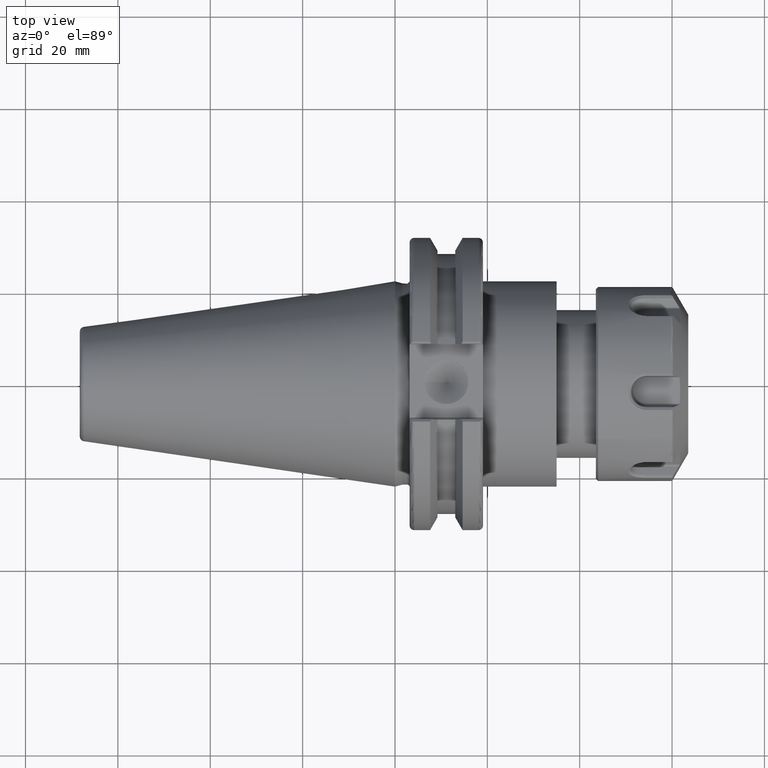
[diagram: clean part render]
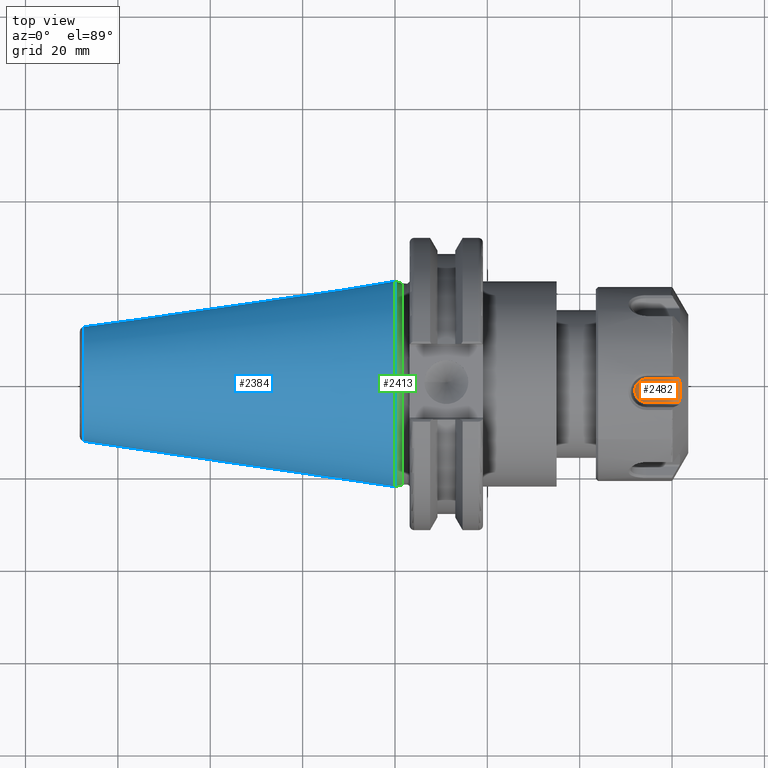
[diagram: same view with three faces highlighted in distinct colors, each labeled with its STEP entity id]
A machine part, top view with three faces highlighted in distinct colors.
Their STEP definitions:

[orange] entity #2482 — the highlighted planar face has unit normal (0, 0.0979, -0.9952).
#174=B_SPLINE_CURVE_WITH_KNOTS('',3,(#4215,#4216,#4217,#4218,#4219,#4220,
#4221),.UNSPECIFIED.,.F.,.F.,(4,1,1,1,4),(0.,0.25,0.5,0.75,1.),
 .UNSPECIFIED.);
#292=PLANE('',#2790);
#457=FACE_OUTER_BOUND('',#612,.T.);
#612=EDGE_LOOP('',(#2275,#2276,#2277,#2278));
#776=LINE('',#5251,#939);
#777=LINE('',#5256,#940);
#939=VECTOR('',#3400,7.161702976639);
#940=VECTOR('',#3407,7.161702976639);
#1049=CIRCLE('',#2791,2.580450184411);
#1214=VERTEX_POINT('',#4203);
#1215=VERTEX_POINT('',#4214);
#1272=VERTEX_POINT('',#5250);
#1273=VERTEX_POINT('',#5254);
#1497=EDGE_CURVE('',#1215,#1214,#174,.T.);
#1610=EDGE_CURVE('',#1272,#1214,#776,.T.);
#1612=EDGE_CURVE('',#1273,#1272,#1049,.T.);
#1613=EDGE_CURVE('',#1215,#1273,#777,.T.);
#2275=ORIENTED_EDGE('',*,*,#1610,.F.);
#2276=ORIENTED_EDGE('',*,*,#1612,.F.);
#2277=ORIENTED_EDGE('',*,*,#1613,.F.);
#2278=ORIENTED_EDGE('',*,*,#1497,.T.);
#2482=ADVANCED_FACE('',(#457),#292,.F.);
#2790=AXIS2_PLACEMENT_3D('',#5253,#3403,#3404);
#2791=AXIS2_PLACEMENT_3D('',#5255,#3405,#3406);
#3400=DIRECTION('',(1.,0.,0.));
#3403=DIRECTION('center_axis',(0.,-0.500000000000017,-0.866025403784429));
#3404=DIRECTION('ref_axis',(0.,0.866025403784429,-0.500000000000017));
#3405=DIRECTION('center_axis',(0.,-0.500000000000017,-0.866025403784429));
#3406=DIRECTION('ref_axis',(0.,-0.866025403784429,0.500000000000017));
#3407=DIRECTION('',(-1.,0.,0.));
#4203=CARTESIAN_POINT('',(8.161702976639,11.2347354129,14.29823217591));
#4214=CARTESIAN_POINT('',(8.161702976639,6.7652645871,16.87868236033));
#4215=CARTESIAN_POINT('Ctrl Pts',(8.161702976639,6.7652645871,16.87868236033));
#4216=CARTESIAN_POINT('Ctrl Pts',(8.196946708672,7.137800085464,16.66359889006));
#4217=CARTESIAN_POINT('Ctrl Pts',(8.250134664999,7.882784225241,16.23348209642));
#4218=CARTESIAN_POINT('Ctrl Pts',(8.276856688426,9.000013581149,15.58844942704));
#4219=CARTESIAN_POINT('Ctrl Pts',(8.250133735868,10.1172298898,14.9434242905));
#4220=CARTESIAN_POINT('Ctrl Pts',(8.196946175203,10.86220555345,14.51331239055));
#4221=CARTESIAN_POINT('Ctrl Pts',(8.161702976639,11.2347354129,14.29823217591));
#5250=CARTESIAN_POINT('',(1.,11.2347354129,14.29823217591));
#5251=CARTESIAN_POINT('',(1.,11.2347354129,14.29823217591));
#5253=CARTESIAN_POINT('Origin',(0.,9.,15.58845726812));
#5254=CARTESIAN_POINT('',(1.,6.7652645871,16.87868236033));
#5255=CARTESIAN_POINT('Origin',(1.,9.,15.58845726812));
#5256=CARTESIAN_POINT('',(8.161702976639,6.7652645871,16.87868236033));

[blue] entity #2384 — the highlighted conical surface has half-angle 8.297 deg.
#359=FACE_OUTER_BOUND('',#506,.T.);
#506=EDGE_LOOP('',(#1792,#1793,#1794,#1795,#1796));
#677=LINE('',#3800,#840);
#840=VECTOR('',#2989,17.2484375);
#979=CIRCLE('',#2625,12.3966635780937);
#980=CIRCLE('',#2626,12.3966635780937);
#984=CIRCLE('',#2632,22.225);
#1134=VERTEX_POINT('',#3787);
#1135=VERTEX_POINT('',#3788);
#1138=VERTEX_POINT('',#3798);
#1383=EDGE_CURVE('',#1134,#1135,#979,.T.);
#1384=EDGE_CURVE('',#1135,#1134,#980,.T.);
#1388=EDGE_CURVE('',#1138,#1138,#984,.T.);
#1389=EDGE_CURVE('',#1138,#1135,#677,.T.);
#1792=ORIENTED_EDGE('',*,*,#1388,.F.);
#1793=ORIENTED_EDGE('',*,*,#1389,.T.);
#1794=ORIENTED_EDGE('',*,*,#1383,.F.);
#1795=ORIENTED_EDGE('',*,*,#1384,.F.);
#1796=ORIENTED_EDGE('',*,*,#1389,.F.);
#2339=CONICAL_SURFACE('',#2631,17.2484375,0.144812498238939);
#2384=ADVANCED_FACE('',(#359),#2339,.T.);
#2625=AXIS2_PLACEMENT_3D('',#3789,#2973,#2974);
#2626=AXIS2_PLACEMENT_3D('',#3790,#2975,#2976);
#2631=AXIS2_PLACEMENT_3D('',#3797,#2985,#2986);
#2632=AXIS2_PLACEMENT_3D('',#3799,#2987,#2988);
#2973=DIRECTION('center_axis',(-1.,0.,0.));
#2974=DIRECTION('ref_axis',(0.,-1.,3.06161699786838E-17));
#2975=DIRECTION('center_axis',(-1.,0.,0.));
#2976=DIRECTION('ref_axis',(0.,-1.,3.06161699786838E-17));
#2985=DIRECTION('center_axis',(1.,0.,0.));
#2986=DIRECTION('ref_axis',(0.,1.,0.));
#2987=DIRECTION('center_axis',(1.,0.,0.));
#2988=DIRECTION('ref_axis',(0.,0.,-1.));
#2989=DIRECTION('',(-0.989532981063282,0.144306893071729,1.76724974695192E-17));
#3787=CARTESIAN_POINT('',(-67.3943068930717,-1.5181534371019E-15,12.3966635780937));
#3788=CARTESIAN_POINT('',(-67.3943068930718,-12.3966635780937,-1.5181534371019E-15));
#3789=CARTESIAN_POINT('Origin',(-67.3943068930717,0.,-1.89769179637738E-15));
#3790=CARTESIAN_POINT('Origin',(-67.3943068930717,0.,-1.89769179637738E-15));
#3797=CARTESIAN_POINT('Origin',(-34.125,0.,0.));
#3798=CARTESIAN_POINT('',(0.,-22.225,-2.72177751110499E-15));
#3799=CARTESIAN_POINT('Origin',(0.,0.,0.));
#3800=CARTESIAN_POINT('',(-34.125,-17.2484375,-2.11232437746682E-15));

[green] entity #2413 — the highlighted conical surface has half-angle 15 deg.
#388=FACE_OUTER_BOUND('',#536,.T.);
#536=EDGE_LOOP('',(#1925,#1926,#1927,#1928));
#696=LINE('',#3896,#859);
#859=VECTOR('',#3096,22.0125);
#971=CIRCLE('',#2603,21.8);
#984=CIRCLE('',#2632,22.225);
#1083=VERTEX_POINT('',#3539);
#1138=VERTEX_POINT('',#3798);
#1317=EDGE_CURVE('',#1083,#1083,#971,.T.);
#1388=EDGE_CURVE('',#1138,#1138,#984,.T.);
#1429=EDGE_CURVE('',#1083,#1138,#696,.T.);
#1925=ORIENTED_EDGE('',*,*,#1317,.F.);
#1926=ORIENTED_EDGE('',*,*,#1429,.T.);
#1927=ORIENTED_EDGE('',*,*,#1388,.T.);
#1928=ORIENTED_EDGE('',*,*,#1429,.F.);
#2346=CONICAL_SURFACE('',#2676,22.0125,0.261799387799148);
#2413=ADVANCED_FACE('',(#388),#2346,.T.);
#2603=AXIS2_PLACEMENT_3D('',#3541,#2897,#2898);
#2632=AXIS2_PLACEMENT_3D('',#3799,#2987,#2988);
#2676=AXIS2_PLACEMENT_3D('',#3895,#3094,#3095);
#2897=DIRECTION('center_axis',(1.,0.,0.));
#2898=DIRECTION('ref_axis',(0.,0.,-1.));
#2987=DIRECTION('center_axis',(1.,0.,0.));
#2988=DIRECTION('ref_axis',(0.,0.,-1.));
#3094=DIRECTION('center_axis',(-1.,0.,0.));
#3095=DIRECTION('ref_axis',(0.,1.,0.));
#3096=DIRECTION('',(-0.965925826289069,-0.258819045102519,-3.16961915143175E-17));
#3539=CARTESIAN_POINT('',(1.58612159321676,-21.8,-2.66973002214123E-15));
#3541=CARTESIAN_POINT('Origin',(1.58612159321676,0.,0.));
#3798=CARTESIAN_POINT('',(0.,-22.225,-2.72177751110499E-15));
#3799=CARTESIAN_POINT('Origin',(0.,0.,0.));
#3895=CARTESIAN_POINT('Origin',(0.793060796608378,0.,0.));
#3896=CARTESIAN_POINT('',(0.793060796608378,-22.0125,-2.69575376662311E-15));